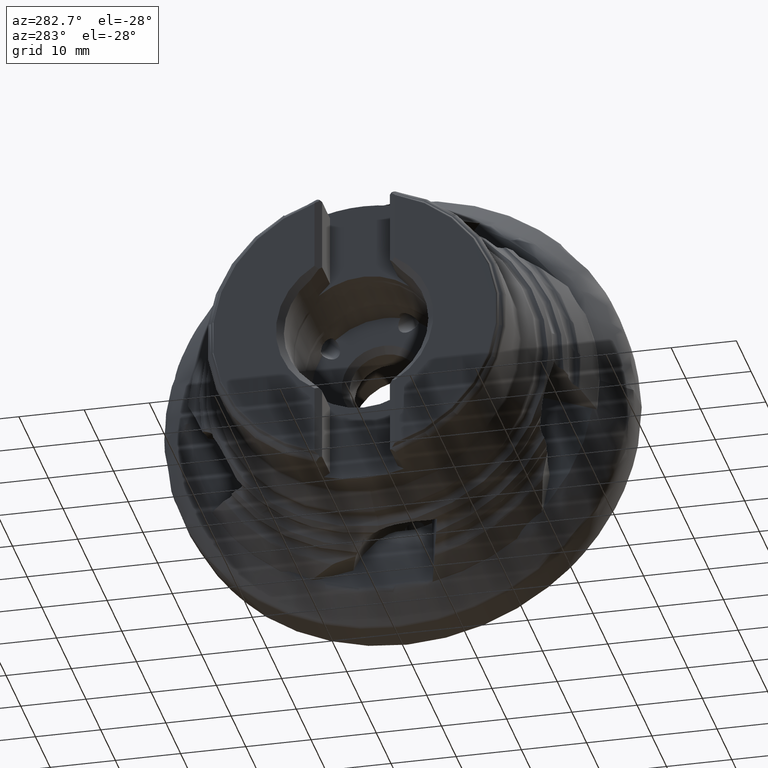
[diagram: clean part render]
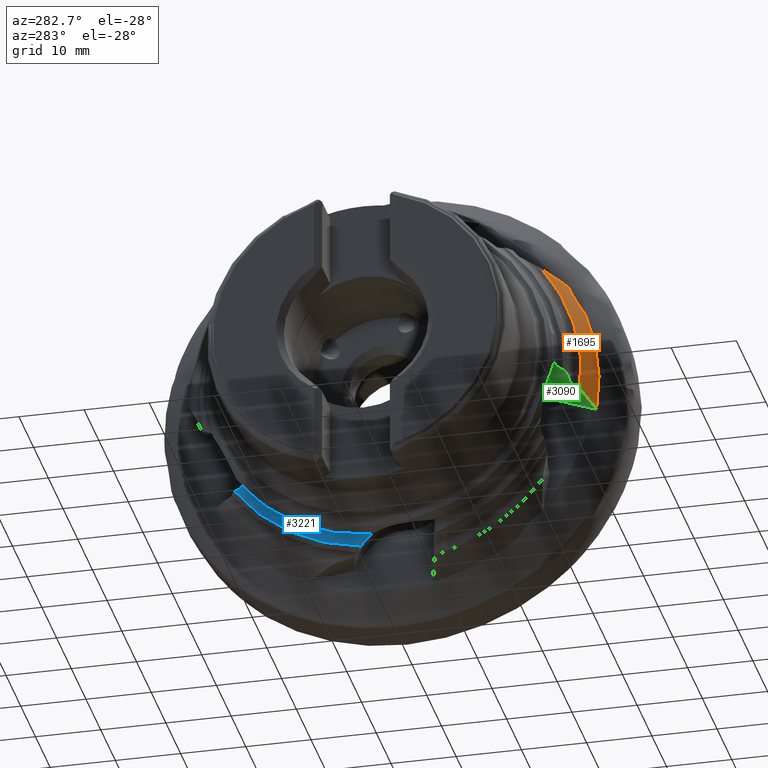
[diagram: same view with three faces highlighted in distinct colors, each labeled with its STEP entity id]
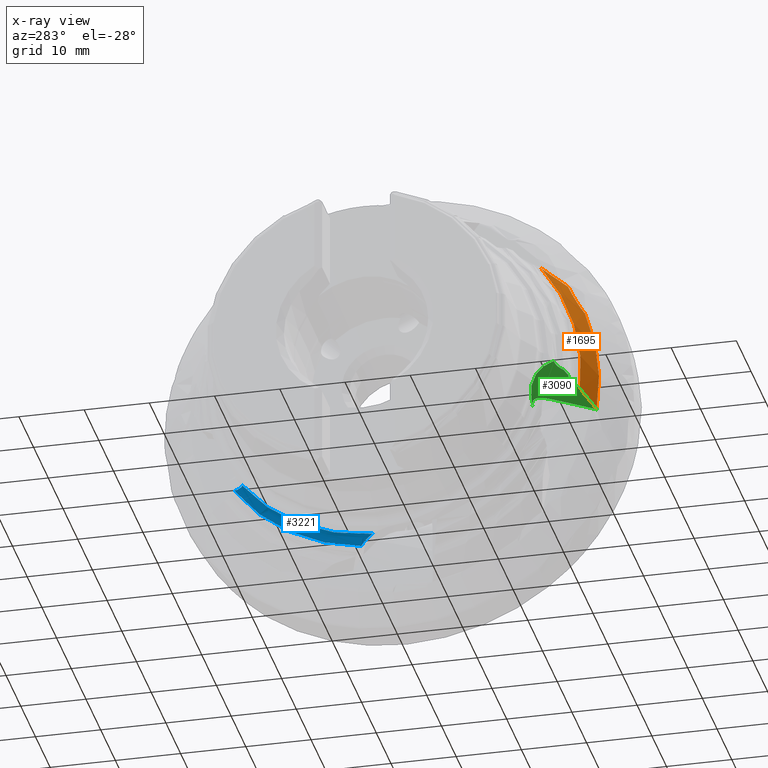
[diagram: x-ray of the same camera — body ghosted, the three highlighted faces saturated]
A machine part, auxiliary view with three faces highlighted in distinct colors.
The next image is the same camera in x-ray (body ghosted, the three faces saturated) — at least one of them is partly hidden behind the body in this view.
Their STEP definitions:

[orange] entity #1695 — the highlighted conical surface has half-angle 29.541 deg.
#6 = DIRECTION ( 'NONE',  ( 1.000000000000000000, -0.0000000000000000000, -0.0000000000000000000 ) ) ;
#27 = CARTESIAN_POINT ( 'NONE',  ( -13.26424888800308500, -31.28591167366789300, -4.846030514498536100 ) ) ;
#118 = EDGE_LOOP ( 'NONE', ( #7737, #5122, #1202, #6145, #4263, #1243 ) ) ;
#151 = B_SPLINE_CURVE_WITH_KNOTS ( 'NONE', 3,
 ( #27, #2563, #1352, #5097 ),
 .UNSPECIFIED., .F., .F.,
 ( 4, 4 ),
 ( 2.450077993680694900E-007, 0.004300298185661457700 ),
 .UNSPECIFIED. ) ;
#285 = CARTESIAN_POINT ( 'NONE',  ( -13.26424888800308800, -29.48296981090957300, 11.53459024538776700 ) ) ;
#363 = CARTESIAN_POINT ( 'NONE',  ( -16.75799999999998800, 0.0000000000000000000, 0.0000000000000000000 ) ) ;
#450 = CARTESIAN_POINT ( 'NONE',  ( -13.62160638006173700, -26.99375312634876800, 16.15076424146962700 ) ) ;
#478 = CARTESIAN_POINT ( 'NONE',  ( -13.91290222573014300, -27.91900853022906400, 14.13786009488483600 ) ) ;
#704 = FACE_OUTER_BOUND ( 'NONE', #118, .T. ) ;
#1071 = CARTESIAN_POINT ( 'NONE',  ( -16.73365094955188300, -23.62451020534798500, 17.98735234632389200 ) ) ;
#1202 = ORIENTED_EDGE ( 'NONE', *, *, #6063, .F. ) ;
#1243 = ORIENTED_EDGE ( 'NONE', *, *, #6047, .F. ) ;
#1301 = CARTESIAN_POINT ( 'NONE',  ( -15.76278961148380700, -24.79813488038390500, 17.35418748099403500 ) ) ;
#1329 = CARTESIAN_POINT ( 'NONE',  ( -16.73365094955188300, -23.62451020534798500, 17.98735234632389200 ) ) ;
#1352 = CARTESIAN_POINT ( 'NONE',  ( -15.59925089044511500, -30.11857729709748800, -3.661458453831975200 ) ) ;
#1695 = ADVANCED_FACE ( 'NONE', ( #704 ), #2474, .T. ) ;
#1713 = CARTESIAN_POINT ( 'NONE',  ( -16.75799999999999600, -23.59498315793961300, 18.00332776951378500 ) ) ;
#1723 = CARTESIAN_POINT ( 'NONE',  ( -13.80154498765872300, -27.34299924263794100, 15.35131269309459300 ) ) ;
#1743 = CARTESIAN_POINT ( 'NONE',  ( -13.26424888800308500, -31.28591167366789300, -4.846030514498536100 ) ) ;
#1825 = CARTESIAN_POINT ( 'NONE',  ( -13.26424888800308800, 0.0000000000000000000, 0.0000000000000000000 ) ) ;
#2297 = CIRCLE ( 'NONE', #3152, 31.65899999999999900 ) ;
#2470 = DIRECTION ( 'NONE',  ( 0.0000000000000000000, 0.0000000000000000000, -1.000000000000000000 ) ) ;
#2474 = CONICAL_SURFACE ( 'NONE', #5132, 31.65899999999999900, 0.5155940062460843100 ) ;
#2563 = CARTESIAN_POINT ( 'NONE',  ( -14.43429384662919500, -30.70653745669819700, -4.254479316831052000 ) ) ;
#2764 = CARTESIAN_POINT ( 'NONE',  ( -13.47843847801070500, -29.23093382228889700, 11.84563585448191200 ) ) ;
#2868 = DIRECTION ( 'NONE',  ( 0.0000000000000000000, 0.0000000000000000000, -1.000000000000000000 ) ) ;
#3152 = AXIS2_PLACEMENT_3D ( 'NONE', #1825, #6, #3751 ) ;
#3593 = CARTESIAN_POINT ( 'NONE',  ( -13.26424888800308800, -29.48296981090957300, 11.53459024538776700 ) ) ;
#3751 = DIRECTION ( 'NONE',  ( 0.0000000000000000000, 0.0000000000000000000, -1.000000000000000000 ) ) ;
#3969 = CARTESIAN_POINT ( 'NONE',  ( -16.75799999999998800, -29.52014114302539100, -3.066644403229599200 ) ) ;
#4180 = CARTESIAN_POINT ( 'NONE',  ( -13.87671965453089300, -28.32906995639612500, 13.34532274870385700 ) ) ;
#4263 = ORIENTED_EDGE ( 'NONE', *, *, #4377, .T. ) ;
#4377 = EDGE_CURVE ( 'NONE', #4980, #7415, #4603, .T. ) ;
#4603 = CIRCLE ( 'NONE', #6493, 29.67899999999999800 ) ;
#4608 = B_SPLINE_CURVE_WITH_KNOTS ( 'NONE', 3,
 ( #285, #2764, #6753, #6056, #4180, #478, #7946, #1723, #6030, #450 ),
 .UNSPECIFIED., .F., .F.,
 ( 4, 2, 2, 2, 4 ),
 ( 4.189945158467693000E-007, 0.001346726628818416300, 0.002693034263120985900, 0.004039341897423555700, 0.005385649531726125100 ),
 .UNSPECIFIED. ) ;
#4845 = CARTESIAN_POINT ( 'NONE',  ( -16.74990383735149600, -23.60483199813796100, 17.99798393187357000 ) ) ;
#4943 = VERTEX_POINT ( 'NONE', #3593 ) ;
#4980 = VERTEX_POINT ( 'NONE', #1713 ) ;
#5007 = EDGE_CURVE ( 'NONE', #4943, #5668, #2297, .T. ) ;
#5059 = B_SPLINE_CURVE_WITH_KNOTS ( 'NONE', 3,
 ( #5434, #4845, #6767, #1071 ),
 .UNSPECIFIED., .F., .F.,
 ( 4, 4 ),
 ( 3.469446951953614200E-018, 4.147212235318233300E-005 ),
 .UNSPECIFIED. ) ;
#5097 = CARTESIAN_POINT ( 'NONE',  ( -16.75799999999998800, -29.52014114302539100, -3.066644403229599200 ) ) ;
#5122 = ORIENTED_EDGE ( 'NONE', *, *, #5490, .T. ) ;
#5132 = AXIS2_PLACEMENT_3D ( 'NONE', #5643, #6286, #2470 ) ;
#5233 = B_SPLINE_CURVE_WITH_KNOTS ( 'NONE', 3,
 ( #1329, #1301, #5698, #6281 ),
 .UNSPECIFIED., .F., .F.,
 ( 4, 4 ),
 ( 4.166968286786060900E-005, 0.004982235520392784200 ),
 .UNSPECIFIED. ) ;
#5368 = DIRECTION ( 'NONE',  ( 1.000000000000000000, -0.0000000000000000000, -0.0000000000000000000 ) ) ;
#5434 = CARTESIAN_POINT ( 'NONE',  ( -16.75799999999999600, -23.59498315793961300, 18.00332776951378500 ) ) ;
#5490 = EDGE_CURVE ( 'NONE', #4943, #6059, #4608, .T. ) ;
#5643 = CARTESIAN_POINT ( 'NONE',  ( -13.26424888800308800, 0.0000000000000000000, 0.0000000000000000000 ) ) ;
#5668 = VERTEX_POINT ( 'NONE', #1743 ) ;
#5698 = CARTESIAN_POINT ( 'NONE',  ( -14.71716400086240900, -25.91492330938227800, 16.74460200479137100 ) ) ;
#6030 = CARTESIAN_POINT ( 'NONE',  ( -13.72540772067287800, -27.16367650916286500, 15.75218509730805200 ) ) ;
#6047 = EDGE_CURVE ( 'NONE', #5668, #7415, #151, .T. ) ;
#6056 = CARTESIAN_POINT ( 'NONE',  ( -13.82425340243076800, -28.54165792307790600, 12.95616210490151600 ) ) ;
#6059 = VERTEX_POINT ( 'NONE', #7581 ) ;
#6063 = EDGE_CURVE ( 'NONE', #8083, #6059, #5233, .T. ) ;
#6145 = ORIENTED_EDGE ( 'NONE', *, *, #7627, .F. ) ;
#6281 = CARTESIAN_POINT ( 'NONE',  ( -13.62160638006173700, -26.99375312634876800, 16.15076424146962700 ) ) ;
#6286 = DIRECTION ( 'NONE',  ( 1.000000000000000000, -0.0000000000000000000, -0.0000000000000000000 ) ) ;
#6493 = AXIS2_PLACEMENT_3D ( 'NONE', #363, #5368, #2868 ) ;
#6753 = CARTESIAN_POINT ( 'NONE',  ( -13.62337065738426000, -28.99573002341733000, 12.20185157380103800 ) ) ;
#6767 = CARTESIAN_POINT ( 'NONE',  ( -16.74178747087803000, -23.61467438037184500, 17.99265872657380400 ) ) ;
#7415 = VERTEX_POINT ( 'NONE', #3969 ) ;
#7581 = CARTESIAN_POINT ( 'NONE',  ( -13.62160638006173700, -26.99375312634876800, 16.15076424146962700 ) ) ;
#7627 = EDGE_CURVE ( 'NONE', #4980, #8083, #5059, .T. ) ;
#7737 = ORIENTED_EDGE ( 'NONE', *, *, #5007, .F. ) ;
#7772 = CARTESIAN_POINT ( 'NONE',  ( -16.73365094955188300, -23.62451020534798500, 17.98735234632389200 ) ) ;
#7946 = CARTESIAN_POINT ( 'NONE',  ( -13.89556105492143000, -27.72050505033057300, 14.54433314956795600 ) ) ;
#8083 = VERTEX_POINT ( 'NONE', #7772 ) ;

[blue] entity #3221 — the highlighted toroidal blend (fillet) surface has major radius 28.0545 mm and minor (blend) radius 1.5 mm.
#28 = CARTESIAN_POINT ( 'NONE',  ( -21.57918050128022400, 1.184819373328099800, -26.52802859009067400 ) ) ;
#82 = VERTEX_POINT ( 'NONE', #730 ) ;
#166 = CARTESIAN_POINT ( 'NONE',  ( -20.10400000000001000, 3.281727342315317900, -27.58823294749498300 ) ) ;
#203 = CARTESIAN_POINT ( 'NONE',  ( -20.80745163047125200, 2.090621525730682200, -26.67611536332059100 ) ) ;
#238 = CARTESIAN_POINT ( 'NONE',  ( -21.17350264558178800, 21.30496706250058000, -15.92789813078647800 ) ) ;
#730 = CARTESIAN_POINT ( 'NONE',  ( -21.51454677159510700, 21.19364404676397500, -16.00136058872537200 ) ) ;
#959 = EDGE_LOOP ( 'NONE', ( #3581, #1034, #3623, #2075, #4585 ) ) ;
#968 = CARTESIAN_POINT ( 'NONE',  ( -20.19419365184818100, 22.34520841798749700, -15.95108019274239400 ) ) ;
#1034 = ORIENTED_EDGE ( 'NONE', *, *, #2045, .T. ) ;
#1242 = B_SPLINE_CURVE_WITH_KNOTS ( 'NONE', 3,
 ( #5539, #3039, #3062, #7451 ),
 .UNSPECIFIED., .F., .F.,
 ( 4, 4 ),
 ( 2.453269466693398600E-017, 0.0001354881823653116400 ),
 .UNSPECIFIED. ) ;
#1267 = CARTESIAN_POINT ( 'NONE',  ( -20.10400000000001000, 3.281727342315317900, -27.58823294749498300 ) ) ;
#1293 = DIRECTION ( 'NONE',  ( 1.000000000000000000, -0.0000000000000000000, -0.0000000000000000000 ) ) ;
#1318 = AXIS2_PLACEMENT_3D ( 'NONE', #4488, #1977, #5140 ) ;
#1387 = CARTESIAN_POINT ( 'NONE',  ( -20.54019430592776300, 2.452371889049065300, -26.84845540414952200 ) ) ;
#1404 = CARTESIAN_POINT ( 'NONE',  ( -20.10400000000000600, 0.0000000000000000000, 0.0000000000000000000 ) ) ;
#1445 = CARTESIAN_POINT ( 'NONE',  ( -20.41923813132166300, 2.629692460208127100, -26.95804664807584700 ) ) ;
#1606 = B_SPLINE_CURVE_WITH_KNOTS ( 'NONE', 3,
 ( #28, #6949, #6255, #7503, #203, #1387, #1445, #5838, #7647, #166 ),
 .UNSPECIFIED., .F., .F.,
 ( 4, 2, 2, 2, 4 ),
 ( 0.0007494096757198120600, 0.001471746588260532200, 0.002194083500801252300, 0.002916420413341972100, 0.003638757325882692200 ),
 .UNSPECIFIED. ) ;
#1780 = CARTESIAN_POINT ( 'NONE',  ( -20.10400000000000300, 22.68912836889529700, -16.03383252296027500 ) ) ;
#1791 = AXIS2_PLACEMENT_3D ( 'NONE', #2708, #4004, #6525 ) ;
#1977 = DIRECTION ( 'NONE',  ( 1.000000000000000000, -0.0000000000000000000, -0.0000000000000000000 ) ) ;
#2045 = EDGE_CURVE ( 'NONE', #2413, #7999, #4241, .T. ) ;
#2075 = ORIENTED_EDGE ( 'NONE', *, *, #5901, .F. ) ;
#2195 = CARTESIAN_POINT ( 'NONE',  ( -20.13541766793793300, 22.51347814892943000, -15.98685996429396600 ) ) ;
#2227 = CARTESIAN_POINT ( 'NONE',  ( -20.36178357161697100, 22.02216776047108500, -15.89999209036610500 ) ) ;
#2413 = VERTEX_POINT ( 'NONE', #5929 ) ;
#2451 = TOROIDAL_SURFACE ( 'NONE', #1318, 28.05447415830487400, 1.499999999999998400 ) ;
#2708 = CARTESIAN_POINT ( 'NONE',  ( -21.57918050126856000, 0.0000000000000000000, 0.0000000000000000000 ) ) ;
#2800 = CARTESIAN_POINT ( 'NONE',  ( -20.86213082105859900, 21.49102061806420500, -15.88825568165809100 ) ) ;
#2970 = CIRCLE ( 'NONE', #4280, 27.78273441392239500 ) ;
#3039 = CARTESIAN_POINT ( 'NONE',  ( -21.53608074275917500, 21.21691495002153300, -15.96899716451752300 ) ) ;
#3062 = CARTESIAN_POINT ( 'NONE',  ( -21.55762490034543400, 21.24046631583647500, -15.93688400072891100 ) ) ;
#3221 = ADVANCED_FACE ( 'NONE', ( #4774 ), #2451, .F. ) ;
#3337 = CARTESIAN_POINT ( 'NONE',  ( -21.57918050128274200, 21.26429810307954700, -15.90502197444091200 ) ) ;
#3378 = CARTESIAN_POINT ( 'NONE',  ( -20.10400000000000300, 22.68912836889529700, -16.03383252296027500 ) ) ;
#3406 = CARTESIAN_POINT ( 'NONE',  ( -20.46789664739294800, 21.87343031481551500, -15.88577592633466300 ) ) ;
#3458 = CARTESIAN_POINT ( 'NONE',  ( -20.71907444492667200, 21.60659570100290200, -15.87982079007171500 ) ) ;
#3581 = ORIENTED_EDGE ( 'NONE', *, *, #3659, .F. ) ;
#3623 = ORIENTED_EDGE ( 'NONE', *, *, #4127, .F. ) ;
#3659 = EDGE_CURVE ( 'NONE', #2413, #6571, #1606, .T. ) ;
#3998 = CARTESIAN_POINT ( 'NONE',  ( -21.51454677159510700, 21.19364404676397500, -16.00136058872537200 ) ) ;
#4004 = DIRECTION ( 'NONE',  ( 1.000000000000000000, -0.0000000000000000000, -0.0000000000000000000 ) ) ;
#4127 = EDGE_CURVE ( 'NONE', #82, #7999, #1242, .T. ) ;
#4241 = CIRCLE ( 'NONE', #1791, 26.55447415830487800 ) ;
#4280 = AXIS2_PLACEMENT_3D ( 'NONE', #1404, #1293, #5663 ) ;
#4488 = CARTESIAN_POINT ( 'NONE',  ( -21.57918050126856000, 0.0000000000000000000, 0.0000000000000000000 ) ) ;
#4585 = ORIENTED_EDGE ( 'NONE', *, *, #6603, .F. ) ;
#4774 = FACE_OUTER_BOUND ( 'NONE', #959, .T. ) ;
#5120 = B_SPLINE_CURVE_WITH_KNOTS ( 'NONE', 3,
 ( #3378, #2195, #968, #2227, #3406, #3458, #2800, #238, #6495, #3998 ),
 .UNSPECIFIED., .F., .F.,
 ( 4, 2, 2, 2, 4 ),
 ( 1.159468990102396800E-006, 0.0005465346960039148700, 0.001091909923017727200, 0.001637285150031539500, 0.002182660377045352300 ),
 .UNSPECIFIED. ) ;
#5140 = DIRECTION ( 'NONE',  ( 0.0000000000000000000, 0.0000000000000000000, -1.000000000000000000 ) ) ;
#5539 = CARTESIAN_POINT ( 'NONE',  ( -21.51454677159510700, 21.19364404676397500, -16.00136058872537200 ) ) ;
#5663 = DIRECTION ( 'NONE',  ( 0.0000000000000000000, 0.0000000000000000000, -1.000000000000000000 ) ) ;
#5838 = CARTESIAN_POINT ( 'NONE',  ( -20.21842949565678500, 2.974693851291678700, -27.23519871333330000 ) ) ;
#5901 = EDGE_CURVE ( 'NONE', #5973, #82, #5120, .T. ) ;
#5929 = CARTESIAN_POINT ( 'NONE',  ( -21.57918050128022400, 1.184819373328099800, -26.52802859009067400 ) ) ;
#5973 = VERTEX_POINT ( 'NONE', #1780 ) ;
#6255 = CARTESIAN_POINT ( 'NONE',  ( -21.25710853380417500, 1.543251422603466600, -26.53656022338337900 ) ) ;
#6495 = CARTESIAN_POINT ( 'NONE',  ( -21.34251771253237400, 21.23463723285745500, -15.95937888772508400 ) ) ;
#6525 = DIRECTION ( 'NONE',  ( 0.0000000000000000000, 0.0000000000000000000, -1.000000000000000000 ) ) ;
#6571 = VERTEX_POINT ( 'NONE', #1267 ) ;
#6603 = EDGE_CURVE ( 'NONE', #6571, #5973, #2970, .T. ) ;
#6949 = CARTESIAN_POINT ( 'NONE',  ( -21.41462099357480400, 1.362955459373045300, -26.52007251129073900 ) ) ;
#7451 = CARTESIAN_POINT ( 'NONE',  ( -21.57918050128274200, 21.26429810307954700, -15.90502197444091200 ) ) ;
#7503 = CARTESIAN_POINT ( 'NONE',  ( -20.95434566606645500, 1.905874559580525500, -26.61395118919930500 ) ) ;
#7647 = CARTESIAN_POINT ( 'NONE',  ( -20.14227509176376800, 3.135172095349939300, -27.39641921253909000 ) ) ;
#7999 = VERTEX_POINT ( 'NONE', #3337 ) ;

[green] entity #3090 — the highlighted planar face has unit normal (0.2924, -0.3271, 0.8986).
#11 = CARTESIAN_POINT ( 'NONE',  ( -12.23863953010333500, -21.45760596252273100, -1.602503628521559900 ) ) ;
#12 = EDGE_CURVE ( 'NONE', #2440, #4800, #1391, .T. ) ;
#27 = CARTESIAN_POINT ( 'NONE',  ( -13.26424888800308500, -31.28591167366789300, -4.846030514498536100 ) ) ;
#113 = CARTESIAN_POINT ( 'NONE',  ( -13.17090737487050100, -30.16827704812567700, -4.469613606915026500 ) ) ;
#126 = CARTESIAN_POINT ( 'NONE',  ( -18.65117836100826700, -23.52681175771966000, -0.2693019237328654300 ) ) ;
#151 = B_SPLINE_CURVE_WITH_KNOTS ( 'NONE', 3,
 ( #27, #2563, #1352, #5097 ),
 .UNSPECIFIED., .F., .F.,
 ( 4, 4 ),
 ( 2.450077993680694900E-007, 0.004300298185661457700 ),
 .UNSPECIFIED. ) ;
#441 = EDGE_CURVE ( 'NONE', #6584, #6643, #678, .T. ) ;
#483 = EDGE_CURVE ( 'NONE', #6643, #5668, #6514, .T. ) ;
#498 = EDGE_CURVE ( 'NONE', #6703, #1845, #6627, .T. ) ;
#569 = ORIENTED_EDGE ( 'NONE', *, *, #4555, .F. ) ;
#619 = CARTESIAN_POINT ( 'NONE',  ( -13.17025533913537800, -30.63344148797304800, -4.639131758055778900 ) ) ;
#678 =( BOUNDED_CURVE ( )  B_SPLINE_CURVE ( 3, ( #4137, #3429, #7159, #5991 ),
 .UNSPECIFIED., .F., .T. ) 
 B_SPLINE_CURVE_WITH_KNOTS ( ( 4, 4 ),
 ( 1.764560585796912900, 1.765056205130754800 ),
 .UNSPECIFIED. ) 
 CURVE ( )  GEOMETRIC_REPRESENTATION_ITEM ( )  RATIONAL_B_SPLINE_CURVE ( ( 1.000000000000000000, 0.9999999795301231000, 0.9999999795301231000, 1.000000000000000000 ) ) 
 REPRESENTATION_ITEM ( '' )  );
#945 = CARTESIAN_POINT ( 'NONE',  ( -18.58116085526122400, -28.18539120203759700, -1.987666496645249500 ) ) ;
#1103 = CARTESIAN_POINT ( 'NONE',  ( -13.26424888800308500, -31.28591167366789300, -4.846030514498536100 ) ) ;
#1151 = DIRECTION ( 'NONE',  ( 0.2923717047227374900, -0.3270754896974933900, 0.8986325224009340500 ) ) ;
#1155 = CARTESIAN_POINT ( 'NONE',  ( -20.46789664739316100, -27.01675854984173600, -0.9484661187138929700 ) ) ;
#1191 = EDGE_CURVE ( 'NONE', #5036, #6584, #3822, .T. ) ;
#1234 = CARTESIAN_POINT ( 'NONE',  ( -13.17211317415987500, -31.09008568193444300, -4.804732202347124400 ) ) ;
#1235 = CARTESIAN_POINT ( 'NONE',  ( -12.56356657843075000, -21.83494594941383200, -1.634128553345000300 ) ) ;
#1273 = CARTESIAN_POINT ( 'NONE',  ( -18.93291632276378400, -28.22285723124223400, -1.886858743117580300 ) ) ;
#1352 = CARTESIAN_POINT ( 'NONE',  ( -15.59925089044511500, -30.11857729709748800, -3.661458453831975200 ) ) ;
#1391 = B_SPLINE_CURVE_WITH_KNOTS ( 'NONE', 3,
 ( #2560, #7607, #4364, #7553, #3848, #3195, #5118, #8134, #3141, #1952 ),
 .UNSPECIFIED., .F., .F.,
 ( 4, 2, 2, 2, 4 ),
 ( 6.249245433138328300E-007, 0.0004748779449964944800, 0.0009491309654496751400, 0.001423383985902856000, 0.001897637006356036600 ),
 .UNSPECIFIED. ) ;
#1561 = CARTESIAN_POINT ( 'NONE',  ( -13.23432894391814700, -31.30072721050158100, -4.861157436442127300 ) ) ;
#1641 = B_SPLINE_CURVE_WITH_KNOTS ( 'NONE', 3,
 ( #7554, #6340, #1273, #6254 ),
 .UNSPECIFIED., .F., .F.,
 ( 4, 4 ),
 ( 0.001897637006356036600, 0.002446827694508336600 ),
 .UNSPECIFIED. ) ;
#1727 = DIRECTION ( 'NONE',  ( 0.0000000000000000000, -0.9396926207859094300, -0.3420201433256660500 ) ) ;
#1743 = CARTESIAN_POINT ( 'NONE',  ( -13.26424888800308500, -31.28591167366789300, -4.846030514498536100 ) ) ;
#1770 = VERTEX_POINT ( 'NONE', #5057 ) ;
#1845 = VERTEX_POINT ( 'NONE', #2071 ) ;
#1879 = CARTESIAN_POINT ( 'NONE',  ( -13.19176268961145100, -25.98369796257209100, -2.939766062742461500 ) ) ;
#1952 = CARTESIAN_POINT ( 'NONE',  ( -18.58116085526122400, -28.18539120203759700, -1.987666496645249500 ) ) ;
#1980 = ORIENTED_EDGE ( 'NONE', *, *, #498, .T. ) ;
#1988 = CARTESIAN_POINT ( 'NONE',  ( -19.10400000000000600, -28.28869554127509300, -1.855159546662028800 ) ) ;
#2071 = CARTESIAN_POINT ( 'NONE',  ( -21.51454677159509300, -26.55224068423559600, -0.4388659451034077600 ) ) ;
#2153 = B_SPLINE_CURVE_WITH_KNOTS ( 'NONE', 3,
 ( #4370, #3174, #2589, #7613 ),
 .UNSPECIFIED., .F., .F.,
 ( 4, 4 ),
 ( 2.434082000731461300E-007, 0.0007122326436860785400 ),
 .UNSPECIFIED. ) ;
#2184 = EDGE_CURVE ( 'NONE', #7415, #2440, #2153, .T. ) ;
#2328 = CARTESIAN_POINT ( 'NONE',  ( -20.71907444492640900, -26.80282365674588300, -0.7888790381207605500 ) ) ;
#2440 = VERTEX_POINT ( 'NONE', #4731 ) ;
#2472 = CARTESIAN_POINT ( 'NONE',  ( -11.59060490397032700, -21.10015631064249700, -1.683241824193692200 ) ) ;
#2484 = CARTESIAN_POINT ( 'NONE',  ( -21.34251771253255500, -26.55869723972734400, -0.4971859023748809200 ) ) ;
#2508 = CARTESIAN_POINT ( 'NONE',  ( -20.86213082105882700, -26.71694228633918700, -0.7110771267719971900 ) ) ;
#2544 = CARTESIAN_POINT ( 'NONE',  ( -12.33077143606169400, -21.07714519840409700, -1.434051954043168700 ) ) ;
#2560 = CARTESIAN_POINT ( 'NONE',  ( -17.19200000000001100, -29.05895128643038600, -2.757582343805169900 ) ) ;
#2563 = CARTESIAN_POINT ( 'NONE',  ( -14.43429384662919500, -30.70653745669819700, -4.254479316831052000 ) ) ;
#2568 = CARTESIAN_POINT ( 'NONE',  ( -13.05907332839542600, -23.19214424947279700, -1.966894325743959500 ) ) ;
#2589 = CARTESIAN_POINT ( 'NONE',  ( -17.10545146862614600, -29.25956513111952300, -2.858758531940343700 ) ) ;
#2972 = CARTESIAN_POINT ( 'NONE',  ( -10.88526751889110300, -20.93539175832335500, -1.852755216207070600 ) ) ;
#3023 = CARTESIAN_POINT ( 'NONE',  ( -13.15969529682909700, -31.20274463028399500, -4.849776884856844100 ) ) ;
#3065 = CARTESIAN_POINT ( 'NONE',  ( -21.51454677159509300, -26.55224068423559600, -0.4388659451034077600 ) ) ;
#3074 = EDGE_LOOP ( 'NONE', ( #3572, #4375, #6617, #3170, #5259, #8113, #7931, #5527, #5144, #5493, #1980, #569 ) ) ;
#3076 = CARTESIAN_POINT ( 'NONE',  ( -11.93147989769965300, -21.24482866327415900, -1.624993962997377500 ) ) ;
#3090 = ADVANCED_FACE ( 'NONE', ( #4926 ), #7976, .F. ) ;
#3098 = EDGE_CURVE ( 'NONE', #6695, #5036, #4089, .T. ) ;
#3141 = CARTESIAN_POINT ( 'NONE',  ( -18.43007080441616100, -28.18201131732388700, -2.035593738549748500 ) ) ;
#3170 = ORIENTED_EDGE ( 'NONE', *, *, #441, .T. ) ;
#3174 = CARTESIAN_POINT ( 'NONE',  ( -16.95298886638958200, -29.42028578254127800, -2.966860046485017700 ) ) ;
#3183 = CARTESIAN_POINT ( 'NONE',  ( -13.09201847394802000, -21.15674579536550200, -1.215351111316590900 ) ) ;
#3195 = CARTESIAN_POINT ( 'NONE',  ( -17.86246447437877200, -28.33937707239275700, -2.277541927943463700 ) ) ;
#3212 = CARTESIAN_POINT ( 'NONE',  ( -16.74570666236437300, -22.33167240377211400, -0.4542554116616657200 ) ) ;
#3236 = CARTESIAN_POINT ( 'NONE',  ( -13.17616652933721300, -26.67971983755155600, -3.198171546382394300 ) ) ;
#3263 = CARTESIAN_POINT ( 'NONE',  ( -13.17117059866136100, -26.91175057007115300, -3.284249261470449300 ) ) ;
#3291 = CARTESIAN_POINT ( 'NONE',  ( -13.17025533913537800, -30.63344148797304800, -4.639131758055778900 ) ) ;
#3429 = CARTESIAN_POINT ( 'NONE',  ( -13.13203881856833300, -31.30447835707735700, -4.895803018091951000 ) ) ;
#3572 = ORIENTED_EDGE ( 'NONE', *, *, #7757, .T. ) ;
#3597 = CARTESIAN_POINT ( 'NONE',  ( -12.03827915002127800, -21.30669968760576100, -1.612765845709020600 ) ) ;
#3616 = CARTESIAN_POINT ( 'NONE',  ( -10.64770960276201000, -20.90468763370429200, -1.918869723341523100 ) ) ;
#3822 = B_SPLINE_CURVE_WITH_KNOTS ( 'NONE', 3,
 ( #5500, #4931, #4221, #1234, #3023, #7416 ),
 .UNSPECIFIED., .F., .F.,
 ( 4, 2, 4 ),
 ( 0.01189599532139498100, 0.01226072878970228500, 0.01262546225800958600 ),
 .UNSPECIFIED. ) ;
#3848 = CARTESIAN_POINT ( 'NONE',  ( -17.62020604839862900, -28.49252902855548800, -2.412103895191479700 ) ) ;
#3868 = CARTESIAN_POINT ( 'NONE',  ( -10.40991885677059300, -20.87628922869028300, -1.985899195394557500 ) ) ;
#3936 = CARTESIAN_POINT ( 'NONE',  ( -13.16984333587268500, -28.30723831600843700, -3.792597090606343100 ) ) ;
#3969 = CARTESIAN_POINT ( 'NONE',  ( -16.75799999999998800, -29.52014114302539100, -3.066644403229599200 ) ) ;
#4089 = B_SPLINE_CURVE_WITH_KNOTS ( 'NONE', 3,
 ( #7380, #3616, #2972, #8043, #5501, #2472, #4222, #3076, #3597, #11, #6928, #6345, #1235, #4401, #6317, #5037, #5593, #2568, #4428, #6238, #4988, #5618, #1879, #3236, #3263, #5814, #4504, #3936, #7652, #6433, #113, #3291 ),
 .UNSPECIFIED., .F., .F.,
 ( 4, 2, 2, 2, 2, 2, 2, 2, 2, 2, 2, 2, 2, 2, 2, 4 ),
 ( 1.788112030672749000E-018, 0.0007434997075871763600, 0.001115249561380763700, 0.001486999415174351000, 0.001858749268967938200, 0.002230499122761525700, 0.002602248976555113400, 0.002973998830348700200, 0.003717498537935886400, 0.004460998245523073100, 0.005947997660697445500, 0.007434997075871816300, 0.008178496783459008100, 0.008921996491046198200, 0.01040899590622058900, 0.01189599532139498100 ),
 .UNSPECIFIED. ) ;
#4137 = CARTESIAN_POINT ( 'NONE',  ( -13.11523772923039400, -31.30366868448258800, -4.900974585951610500 ) ) ;
#4221 = CARTESIAN_POINT ( 'NONE',  ( -13.16922204672059100, -30.86155991228903500, -4.722496257937020700 ) ) ;
#4222 = CARTESIAN_POINT ( 'NONE',  ( -11.70781646318833300, -21.14173954251624100, -1.660241891586933500 ) ) ;
#4364 = CARTESIAN_POINT ( 'NONE',  ( -17.32455759353172200, -28.80413491055934800, -2.621708916712249100 ) ) ;
#4370 = CARTESIAN_POINT ( 'NONE',  ( -16.75799999999998800, -29.52014114302539100, -3.066644403229599200 ) ) ;
#4375 = ORIENTED_EDGE ( 'NONE', *, *, #3098, .T. ) ;
#4401 = CARTESIAN_POINT ( 'NONE',  ( -12.68954810947166400, -22.04778517430943600, -1.670607378558190700 ) ) ;
#4428 = CARTESIAN_POINT ( 'NONE',  ( -13.09562115452573200, -23.42469552997490500, -2.039645168931508000 ) ) ;
#4442 = CARTESIAN_POINT ( 'NONE',  ( -20.10400000000000300, -27.75069013086306700, -1.333989795825661000 ) ) ;
#4504 = CARTESIAN_POINT ( 'NONE',  ( -13.16700306312006000, -27.60909598262234300, -3.539418149812633800 ) ) ;
#4537 = DIRECTION ( 'NONE',  ( 0.9563047559630353200, 0.09999701235363801800, -0.2747395334545538700 ) ) ;
#4555 = EDGE_CURVE ( 'NONE', #1770, #1845, #7413, .T. ) ;
#4617 = CARTESIAN_POINT ( 'NONE',  ( -13.16563854371812600, -31.30609385744920200, -4.885459281232527900 ) ) ;
#4731 = CARTESIAN_POINT ( 'NONE',  ( -17.19200000000001100, -29.05895128643038600, -2.757582343805169900 ) ) ;
#4797 = CARTESIAN_POINT ( 'NONE',  ( -20.13541766793801100, -27.58335667388789100, -1.262863603613513500 ) ) ;
#4800 = VERTEX_POINT ( 'NONE', #945 ) ;
#4864 = CARTESIAN_POINT ( 'NONE',  ( -12.33077143606169400, -41.72740307368908900, -8.950131150568069000 ) ) ;
#4870 = CARTESIAN_POINT ( 'NONE',  ( -20.10400000000000300, -27.75069013086306700, -1.333989795825661000 ) ) ;
#4926 = FACE_OUTER_BOUND ( 'NONE', #3074, .T. ) ;
#4931 = CARTESIAN_POINT ( 'NONE',  ( -13.17009540682289300, -30.74753772617423700, -4.680711426867793200 ) ) ;
#4988 = CARTESIAN_POINT ( 'NONE',  ( -13.19494770791353500, -24.58841678898836800, -2.430888995702465300 ) ) ;
#5036 = VERTEX_POINT ( 'NONE', #619 ) ;
#5037 = CARTESIAN_POINT ( 'NONE',  ( -12.88539497843156100, -22.49305919071696600, -1.768954736149399600 ) ) ;
#5057 = CARTESIAN_POINT ( 'NONE',  ( -12.33077143606169400, -21.07714519840409700, -1.434051954043168700 ) ) ;
#5058 = EDGE_CURVE ( 'NONE', #5279, #6703, #5726, .T. ) ;
#5097 = CARTESIAN_POINT ( 'NONE',  ( -16.75799999999998800, -29.52014114302539100, -3.066644403229599200 ) ) ;
#5118 = CARTESIAN_POINT ( 'NONE',  ( -17.99785546219446200, -28.27932001622485100, -2.211633246150560800 ) ) ;
#5144 = ORIENTED_EDGE ( 'NONE', *, *, #6084, .T. ) ;
#5216 = CARTESIAN_POINT ( 'NONE',  ( -12.33077143606169400, -21.07714519840409700, -1.434051954043168700 ) ) ;
#5259 = ORIENTED_EDGE ( 'NONE', *, *, #483, .T. ) ;
#5266 = CARTESIAN_POINT ( 'NONE',  ( -13.20064603002640200, -31.30777574968538000, -4.874681691414875400 ) ) ;
#5279 = VERTEX_POINT ( 'NONE', #7727 ) ;
#5493 = ORIENTED_EDGE ( 'NONE', *, *, #5058, .T. ) ;
#5500 = CARTESIAN_POINT ( 'NONE',  ( -13.17025533913537800, -30.63344148797304800, -4.639131758055778900 ) ) ;
#5501 = CARTESIAN_POINT ( 'NONE',  ( -11.35683485989810700, -21.03194079991677900, -1.734470912364158600 ) ) ;
#5527 = ORIENTED_EDGE ( 'NONE', *, *, #12, .T. ) ;
#5593 = CARTESIAN_POINT ( 'NONE',  ( -12.95426485198394900, -22.72736170734605600, -1.831826940994913900 ) ) ;
#5618 = CARTESIAN_POINT ( 'NONE',  ( -13.20280894406298900, -25.51975837707349400, -2.767311944403019200 ) ) ;
#5668 = VERTEX_POINT ( 'NONE', #1743 ) ;
#5726 = B_SPLINE_CURVE_WITH_KNOTS ( 'NONE', 3,
 ( #1988, #6375, #7681, #5782 ),
 .UNSPECIFIED., .F., .F.,
 ( 4, 4 ),
 ( 2.494029146917867200E-007, 0.001249676363892983400 ),
 .UNSPECIFIED. ) ;
#5782 = CARTESIAN_POINT ( 'NONE',  ( -20.10400000000000300, -27.75069013086306700, -1.333989795825661000 ) ) ;
#5814 = CARTESIAN_POINT ( 'NONE',  ( -13.16672919193146100, -27.37645362396324700, -3.454832360514215900 ) ) ;
#5991 = CARTESIAN_POINT ( 'NONE',  ( -13.16563854371812600, -31.30609385744920200, -4.885459281232527900 ) ) ;
#6047 = EDGE_CURVE ( 'NONE', #5668, #7415, #151, .T. ) ;
#6084 = EDGE_CURVE ( 'NONE', #4800, #5279, #1641, .T. ) ;
#6238 = CARTESIAN_POINT ( 'NONE',  ( -13.17730623393591900, -24.12263150388985600, -2.267096701602578700 ) ) ;
#6254 = CARTESIAN_POINT ( 'NONE',  ( -19.10400000000000600, -28.28869554127509300, -1.855159546662028800 ) ) ;
#6317 = CARTESIAN_POINT ( 'NONE',  ( -12.74343428064663500, -22.15738407735209100, -1.692966154425665300 ) ) ;
#6340 = CARTESIAN_POINT ( 'NONE',  ( -18.75612494703912600, -28.18930514910040900, -1.932166175454004300 ) ) ;
#6345 = CARTESIAN_POINT ( 'NONE',  ( -12.49143341916782300, -21.73221621170269900, -1.620206639530675100 ) ) ;
#6350 = CARTESIAN_POINT ( 'NONE',  ( -20.25157595274306400, -24.94520557454668000, -0.2648628234247502000 ) ) ;
#6367 = VECTOR ( 'NONE', #4537, 1000.000000000000100 ) ;
#6375 = CARTESIAN_POINT ( 'NONE',  ( -19.43797658996122700, -28.11039738402680000, -1.681604441376165500 ) ) ;
#6413 = CARTESIAN_POINT ( 'NONE',  ( -21.51454677159509300, -26.55224068423559600, -0.4388659451034077600 ) ) ;
#6433 = CARTESIAN_POINT ( 'NONE',  ( -13.16997831490842200, -29.70294855254170200, -4.300550156693450500 ) ) ;
#6514 = B_SPLINE_CURVE_WITH_KNOTS ( 'NONE', 3,
 ( #4617, #5266, #1561, #1103 ),
 .UNSPECIFIED., .F., .F.,
 ( 4, 4 ),
 ( 2.064323193295134200E-007, 0.0001086186701046858200 ),
 .UNSPECIFIED. ) ;
#6584 = VERTEX_POINT ( 'NONE', #7477 ) ;
#6617 = ORIENTED_EDGE ( 'NONE', *, *, #1191, .T. ) ;
#6627 = B_SPLINE_CURVE_WITH_KNOTS ( 'NONE', 3,
 ( #4870, #4797, #7981, #8035, #1155, #2328, #2508, #7425, #2484, #3065 ),
 .UNSPECIFIED., .F., .F.,
 ( 4, 2, 2, 2, 4 ),
 ( 1.159468967371475200E-006, 0.0005465346959810991400, 0.001091909922994826700, 0.001637285150008554400, 0.002182660377022282200 ),
 .UNSPECIFIED. ) ;
#6643 = VERTEX_POINT ( 'NONE', #7641 ) ;
#6695 = VERTEX_POINT ( 'NONE', #3868 ) ;
#6703 = VERTEX_POINT ( 'NONE', #4442 ) ;
#6928 = CARTESIAN_POINT ( 'NONE',  ( -12.32977651321754200, -21.54445383795530900, -1.604462088989034000 ) ) ;
#6963 = CARTESIAN_POINT ( 'NONE',  ( -21.13085881171167900, -26.00916889119228500, -0.3660375440535761900 ) ) ;
#6989 = CARTESIAN_POINT ( 'NONE',  ( -21.51346388712208900, -26.55070727201332300, -0.4386601471053261900 ) ) ;
#7159 = CARTESIAN_POINT ( 'NONE',  ( -13.14883909040816500, -31.30528674808278600, -4.890631249746382600 ) ) ;
#7380 = CARTESIAN_POINT ( 'NONE',  ( -10.40991885677059300, -20.87628922869028300, -1.985899195394557500 ) ) ;
#7413 = B_SPLINE_CURVE_WITH_KNOTS ( 'NONE', 3,
 ( #2544, #3183, #7514, #3212, #126, #6350, #6963, #6989, #6413 ),
 .UNSPECIFIED., .F., .F.,
 ( 4, 1, 1, 1, 1, 1, 4 ),
 ( 0.0000000000000000000, 0.1577643202496721000, 0.3124649640000150000, 0.4613803456386051900, 0.6023829823347568400, 0.7340525702440109400, 0.7344264097466503000 ),
 .UNSPECIFIED. ) ;
#7415 = VERTEX_POINT ( 'NONE', #3969 ) ;
#7416 = CARTESIAN_POINT ( 'NONE',  ( -13.11523772923039400, -31.30366868448258800, -4.900974585951610500 ) ) ;
#7425 = CARTESIAN_POINT ( 'NONE',  ( -21.17350264558151800, -26.59473641252438000, -0.5652924440518581900 ) ) ;
#7477 = CARTESIAN_POINT ( 'NONE',  ( -13.11523772923039400, -31.30366868448258800, -4.900974585951610500 ) ) ;
#7514 = CARTESIAN_POINT ( 'NONE',  ( -14.60406951718228700, -21.46326044763204900, -0.8349647991949502600 ) ) ;
#7553 = CARTESIAN_POINT ( 'NONE',  ( -17.51044169889251000, -28.58710757679794100, -2.482239699753475500 ) ) ;
#7554 = CARTESIAN_POINT ( 'NONE',  ( -18.58116085526122400, -28.18539120203759700, -1.987666496645249500 ) ) ;
#7607 = CARTESIAN_POINT ( 'NONE',  ( -17.24894240292387000, -28.92492700139894200, -2.690275180349446200 ) ) ;
#7613 = CARTESIAN_POINT ( 'NONE',  ( -17.19200000000001100, -29.05895128643038600, -2.757582343805169900 ) ) ;
#7641 = CARTESIAN_POINT ( 'NONE',  ( -13.16563854371812600, -31.30609385744920200, -4.885459281232527900 ) ) ;
#7652 = CARTESIAN_POINT ( 'NONE',  ( -13.17004460608269400, -28.77249124928840400, -3.961869826101070300 ) ) ;
#7681 = CARTESIAN_POINT ( 'NONE',  ( -19.77132693769447500, -27.93108319982210100, -1.507883281554292000 ) ) ;
#7727 = CARTESIAN_POINT ( 'NONE',  ( -19.10400000000000600, -28.28869554127509300, -1.855159546662028800 ) ) ;
#7757 = EDGE_CURVE ( 'NONE', #1770, #6695, #8022, .T. ) ;
#7763 = AXIS2_PLACEMENT_3D ( 'NONE', #4864, #1151, #1727 ) ;
#7931 = ORIENTED_EDGE ( 'NONE', *, *, #2184, .T. ) ;
#7976 = PLANE ( 'NONE',  #7763 ) ;
#7981 = CARTESIAN_POINT ( 'NONE',  ( -20.19419365184835900, -27.42873008945894500, -1.187461257553365400 ) ) ;
#8022 = LINE ( 'NONE', #5216, #6367 ) ;
#8035 = CARTESIAN_POINT ( 'NONE',  ( -20.36178357161678700, -27.14271760100387000, -1.028835543810855800 ) ) ;
#8043 = CARTESIAN_POINT ( 'NONE',  ( -11.23924474227300000, -21.00481562276249300, -1.762856311191679300 ) ) ;
#8113 = ORIENTED_EDGE ( 'NONE', *, *, #6047, .T. ) ;
#8134 = CARTESIAN_POINT ( 'NONE',  ( -18.27953052962303800, -28.20125758370937800, -2.091577355344699900 ) ) ;